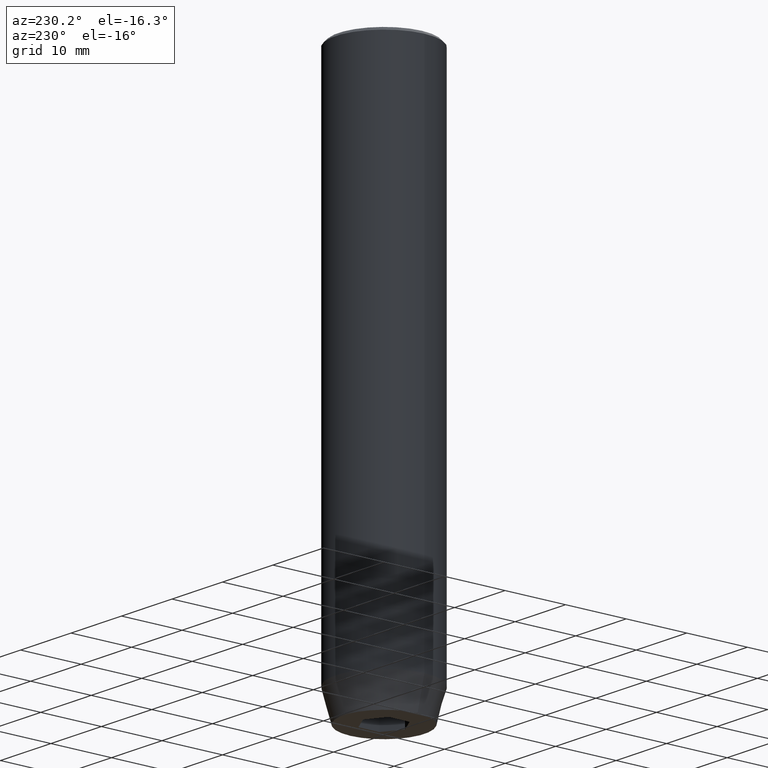
[diagram: clean part render]
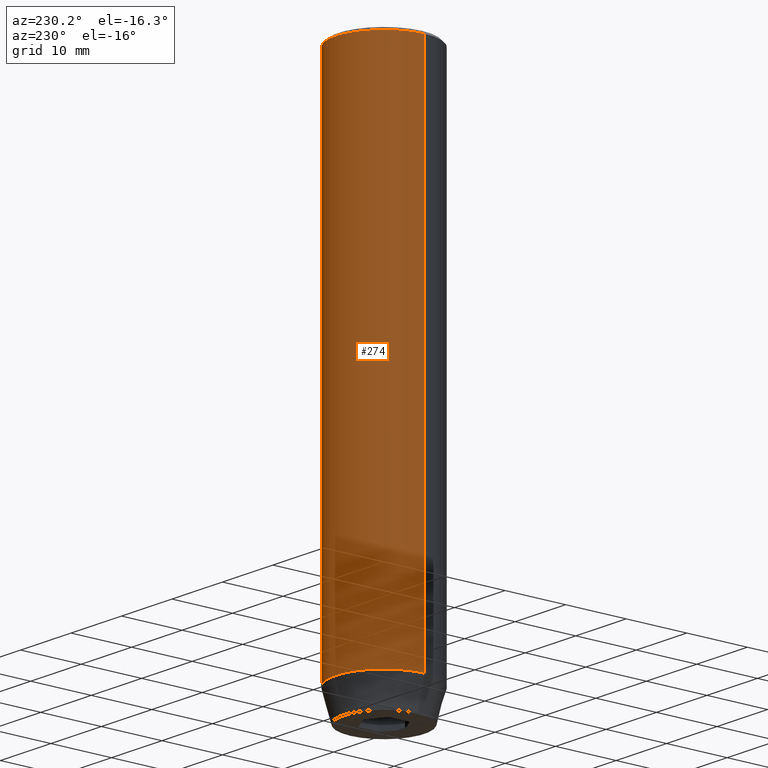
[diagram: same view with one face highlighted and labeled with its STEP entity id]
A machine part, auxiliary view. The second image highlights one B-rep face of the part: STEP entity #274.
In plain terms, the highlighted cylindrical surface (partial cylindrical patch) has radius 8 mm, axis along (-0, -0, 1).
Its self-contained STEP definition (entity closure, byte-faithful):
#14 = VERTEX_POINT ( 'NONE', #544 ) ;
#45 = AXIS2_PLACEMENT_3D ( 'NONE', #246, #294, #251 ) ;
#77 = CARTESIAN_POINT ( 'NONE',  ( -8.000000000000000000, 9.797174393178825657E-16, 0.000000000000000000 ) ) ;
#88 = DIRECTION ( 'NONE',  ( 1.000000000000000000, 0.000000000000000000, 0.000000000000000000 ) ) ;
#92 = VERTEX_POINT ( 'NONE', #188 ) ;
#108 = ORIENTED_EDGE ( 'NONE', *, *, #518, .T. ) ;
#113 = EDGE_LOOP ( 'NONE', ( #144, #108, #365, #338 ) ) ;
#119 = FACE_OUTER_BOUND ( 'NONE', #113, .T. ) ;
#138 = AXIS2_PLACEMENT_3D ( 'NONE', #522, #578, #168 ) ;
#144 = ORIENTED_EDGE ( 'NONE', *, *, #466, .T. ) ;
#156 = DIRECTION ( 'NONE',  ( -0.000000000000000000, -0.000000000000000000, 1.000000000000000000 ) ) ;
#162 = CARTESIAN_POINT ( 'NONE',  ( -8.000000000000000000, 9.797174393178825657E-16, -84.99999999999998579 ) ) ;
#168 = DIRECTION ( 'NONE',  ( 1.000000000000000000, 0.000000000000000000, 0.000000000000000000 ) ) ;
#188 = CARTESIAN_POINT ( 'NONE',  ( 8.000000000000000000, 0.000000000000000000, -84.99999999999998579 ) ) ;
#189 = EDGE_CURVE ( 'NONE', #92, #529, #375, .T. ) ;
#194 = VECTOR ( 'NONE', #156, 1000.000000000000000 ) ;
#202 = VERTEX_POINT ( 'NONE', #162 ) ;
#203 = CARTESIAN_POINT ( 'NONE',  ( 8.000000000000000000, 0.000000000000000000, 0.000000000000000000 ) ) ;
#210 = CIRCLE ( 'NONE', #138, 8.000000000000000000 ) ;
#245 = AXIS2_PLACEMENT_3D ( 'NONE', #312, #494, #88 ) ;
#246 = CARTESIAN_POINT ( 'NONE',  ( 0.000000000000000000, 0.000000000000000000, 0.000000000000000000 ) ) ;
#251 = DIRECTION ( 'NONE',  ( 1.000000000000000000, 0.000000000000000000, 0.000000000000000000 ) ) ;
#271 = CARTESIAN_POINT ( 'NONE',  ( 8.000000000000000000, 0.000000000000000000, -0.5000000000000213163 ) ) ;
#274 = ADVANCED_FACE ( 'NONE', ( #119 ), #306, .T. ) ;
#294 = DIRECTION ( 'NONE',  ( -0.000000000000000000, -0.000000000000000000, 1.000000000000000000 ) ) ;
#306 = CYLINDRICAL_SURFACE ( 'NONE', #45, 8.000000000000000000 ) ;
#312 = CARTESIAN_POINT ( 'NONE',  ( 0.000000000000000000, 0.000000000000000000, -0.5000000000000213163 ) ) ;
#338 = ORIENTED_EDGE ( 'NONE', *, *, #189, .F. ) ;
#344 = CIRCLE ( 'NONE', #245, 8.000000000000000000 ) ;
#362 = EDGE_CURVE ( 'NONE', #14, #529, #344, .T. ) ;
#365 = ORIENTED_EDGE ( 'NONE', *, *, #362, .T. ) ;
#375 = LINE ( 'NONE', #203, #194 ) ;
#397 = LINE ( 'NONE', #77, #515 ) ;
#466 = EDGE_CURVE ( 'NONE', #92, #202, #210, .T. ) ;
#494 = DIRECTION ( 'NONE',  ( 0.000000000000000000, 0.000000000000000000, -1.000000000000000000 ) ) ;
#515 = VECTOR ( 'NONE', #531, 1000.000000000000000 ) ;
#518 = EDGE_CURVE ( 'NONE', #202, #14, #397, .T. ) ;
#522 = CARTESIAN_POINT ( 'NONE',  ( 0.000000000000000000, 0.000000000000000000, -84.99999999999998579 ) ) ;
#529 = VERTEX_POINT ( 'NONE', #271 ) ;
#531 = DIRECTION ( 'NONE',  ( -0.000000000000000000, -0.000000000000000000, 1.000000000000000000 ) ) ;
#544 = CARTESIAN_POINT ( 'NONE',  ( -8.000000000000000000, 9.797174393178825657E-16, -0.5000000000000213163 ) ) ;
#578 = DIRECTION ( 'NONE',  ( -0.000000000000000000, -0.000000000000000000, 1.000000000000000000 ) ) ;